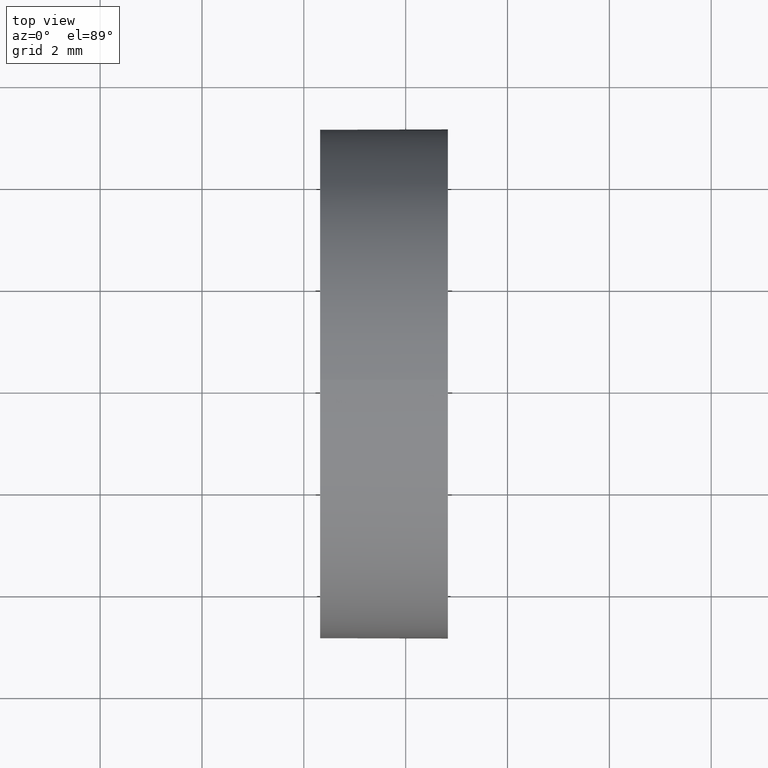
[diagram: clean part render]
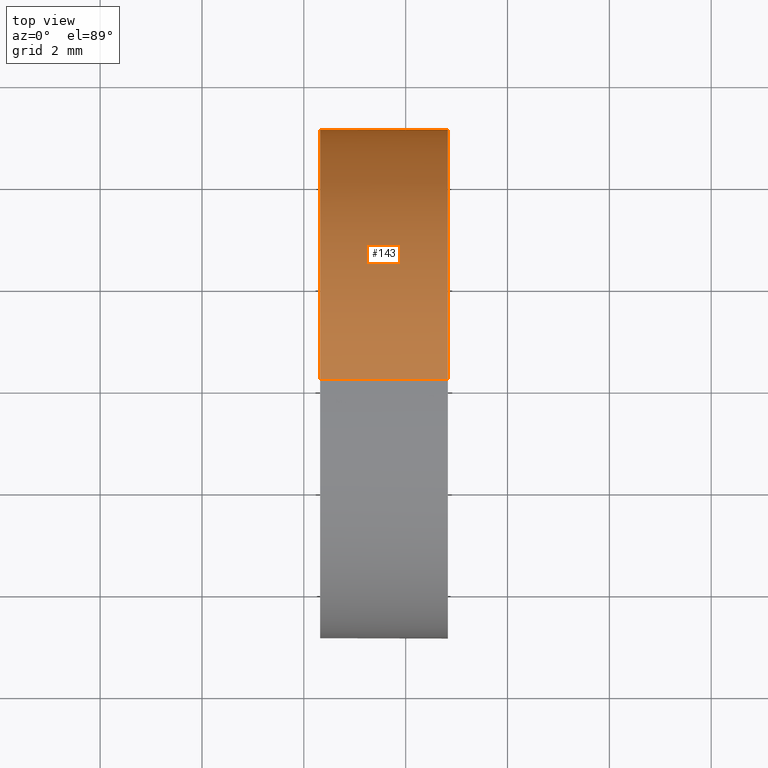
[diagram: same view with one face highlighted and labeled with its STEP entity id]
A machine part, top view. The second image highlights one B-rep face of the part: STEP entity #143.
In plain terms, the highlighted cylindrical surface (partial cylindrical patch) has radius 5 mm, axis along (-1, -0, -0).
Its self-contained STEP definition (entity closure, byte-faithful):
#1 = EDGE_CURVE ( 'NONE', #11, #20, #21, .T. ) ;
#6 = CARTESIAN_POINT ( 'NONE',  ( 46.82958549791030100, 31.08904114919495500, 6.123233995736764300E-016 ) ) ;
#9 = AXIS2_PLACEMENT_3D ( 'NONE', #68, #47, #123 ) ;
#11 = VERTEX_POINT ( 'NONE', #87 ) ;
#18 = EDGE_CURVE ( 'NONE', #118, #54, #30, .T. ) ;
#20 = VERTEX_POINT ( 'NONE', #6 ) ;
#21 = CIRCLE ( 'NONE', #109, 5.000000000000000900 ) ;
#23 = VECTOR ( 'NONE', #39, 1000.000000000000000 ) ;
#24 = FACE_OUTER_BOUND ( 'NONE', #76, .T. ) ;
#28 = DIRECTION ( 'NONE',  ( -1.000000000000000000, -0.0000000000000000000, -0.0000000000000000000 ) ) ;
#30 = LINE ( 'NONE', #102, #23 ) ;
#31 = ORIENTED_EDGE ( 'NONE', *, *, #18, .T. ) ;
#32 = DIRECTION ( 'NONE',  ( -1.000000000000000000, -0.0000000000000000000, -0.0000000000000000000 ) ) ;
#35 = VERTEX_POINT ( 'NONE', #134 ) ;
#39 = DIRECTION ( 'NONE',  ( -1.000000000000000000, -0.0000000000000000000, -0.0000000000000000000 ) ) ;
#40 = CARTESIAN_POINT ( 'NONE',  ( 42.44986111413682300, 26.08904114919495900, 5.000000000000000900 ) ) ;
#41 = DIRECTION ( 'NONE',  ( 0.0000000000000000000, 0.0000000000000000000, 1.000000000000000000 ) ) ;
#44 = CARTESIAN_POINT ( 'NONE',  ( 46.82958549791030100, 26.08904114919495900, -5.000000000000000900 ) ) ;
#46 = DIRECTION ( 'NONE',  ( 0.0000000000000000000, 0.0000000000000000000, 1.000000000000000000 ) ) ;
#47 = DIRECTION ( 'NONE',  ( -1.000000000000000000, -0.0000000000000000000, -0.0000000000000000000 ) ) ;
#54 = VERTEX_POINT ( 'NONE', #77 ) ;
#55 = EDGE_CURVE ( 'NONE', #11, #35, #57, .T. ) ;
#57 = LINE ( 'NONE', #40, #156 ) ;
#62 = AXIS2_PLACEMENT_3D ( 'NONE', #91, #32, #46 ) ;
#68 = CARTESIAN_POINT ( 'NONE',  ( 44.31958549791029600, 26.08904114919495900, 0.0000000000000000000 ) ) ;
#74 = CYLINDRICAL_SURFACE ( 'NONE', #62, 5.000000000000000900 ) ;
#76 = EDGE_LOOP ( 'NONE', ( #104, #31, #136, #158, #157 ) ) ;
#77 = CARTESIAN_POINT ( 'NONE',  ( 44.31958549791029600, 26.08904114919495900, -5.000000000000000900 ) ) ;
#87 = CARTESIAN_POINT ( 'NONE',  ( 46.82958549791030100, 26.08904114919495900, 5.000000000000000900 ) ) ;
#91 = CARTESIAN_POINT ( 'NONE',  ( 42.44986111413682300, 26.08904114919495900, 0.0000000000000000000 ) ) ;
#100 = EDGE_CURVE ( 'NONE', #20, #118, #161, .T. ) ;
#102 = CARTESIAN_POINT ( 'NONE',  ( 42.44986111413682300, 26.08904114919495900, -5.000000000000000900 ) ) ;
#104 = ORIENTED_EDGE ( 'NONE', *, *, #100, .T. ) ;
#105 = CARTESIAN_POINT ( 'NONE',  ( 46.82958549791030100, 26.08904114919495900, 0.0000000000000000000 ) ) ;
#109 = AXIS2_PLACEMENT_3D ( 'NONE', #105, #176, #41 ) ;
#118 = VERTEX_POINT ( 'NONE', #44 ) ;
#121 = AXIS2_PLACEMENT_3D ( 'NONE', #150, #178, #179 ) ;
#123 = DIRECTION ( 'NONE',  ( 0.0000000000000000000, 0.0000000000000000000, 1.000000000000000000 ) ) ;
#125 = CIRCLE ( 'NONE', #9, 5.000000000000000900 ) ;
#134 = CARTESIAN_POINT ( 'NONE',  ( 44.31958549791029600, 26.08904114919495900, 5.000000000000000900 ) ) ;
#136 = ORIENTED_EDGE ( 'NONE', *, *, #155, .F. ) ;
#143 = ADVANCED_FACE ( 'NONE', ( #24 ), #74, .T. ) ;
#150 = CARTESIAN_POINT ( 'NONE',  ( 46.82958549791030100, 26.08904114919495900, 0.0000000000000000000 ) ) ;
#155 = EDGE_CURVE ( 'NONE', #35, #54, #125, .T. ) ;
#156 = VECTOR ( 'NONE', #28, 1000.000000000000000 ) ;
#157 = ORIENTED_EDGE ( 'NONE', *, *, #1, .T. ) ;
#158 = ORIENTED_EDGE ( 'NONE', *, *, #55, .F. ) ;
#161 = CIRCLE ( 'NONE', #121, 5.000000000000000900 ) ;
#176 = DIRECTION ( 'NONE',  ( -1.000000000000000000, -0.0000000000000000000, -0.0000000000000000000 ) ) ;
#178 = DIRECTION ( 'NONE',  ( -1.000000000000000000, -0.0000000000000000000, -0.0000000000000000000 ) ) ;
#179 = DIRECTION ( 'NONE',  ( 0.0000000000000000000, 0.0000000000000000000, 1.000000000000000000 ) ) ;